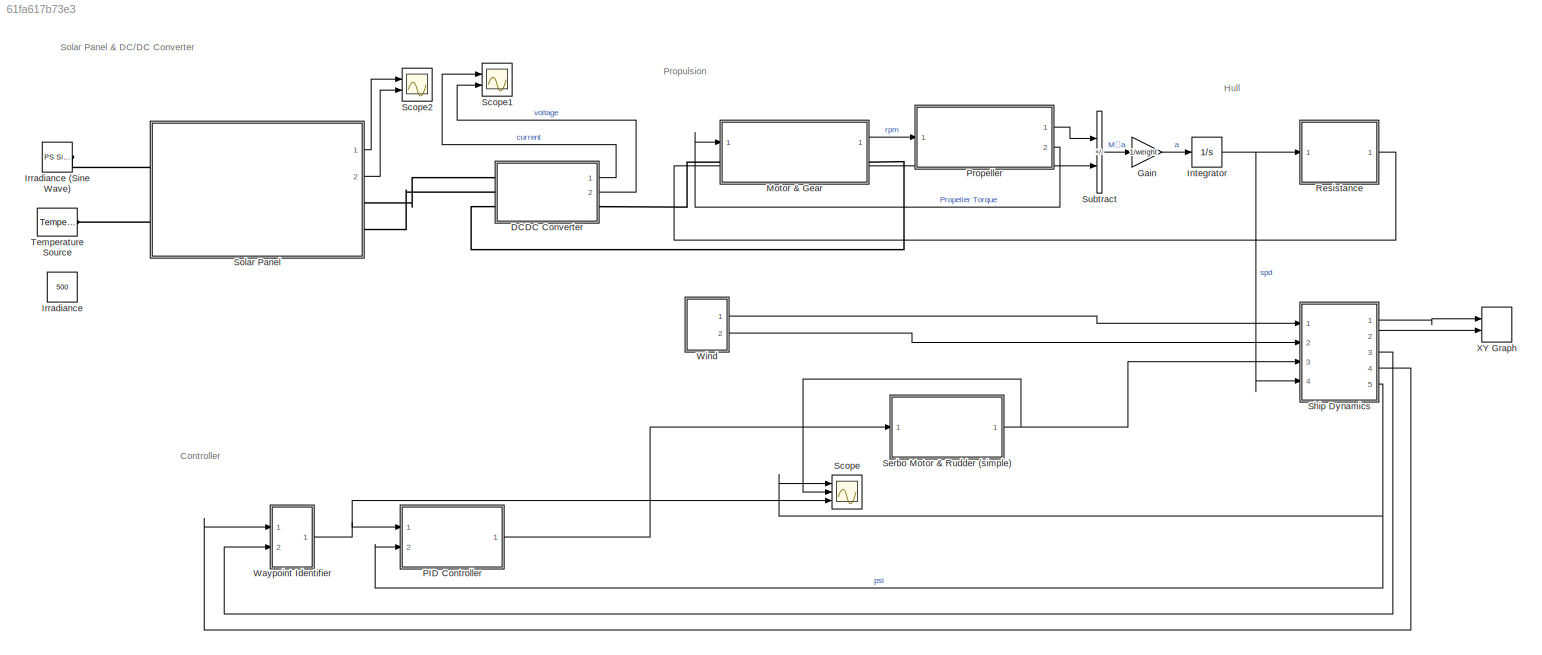
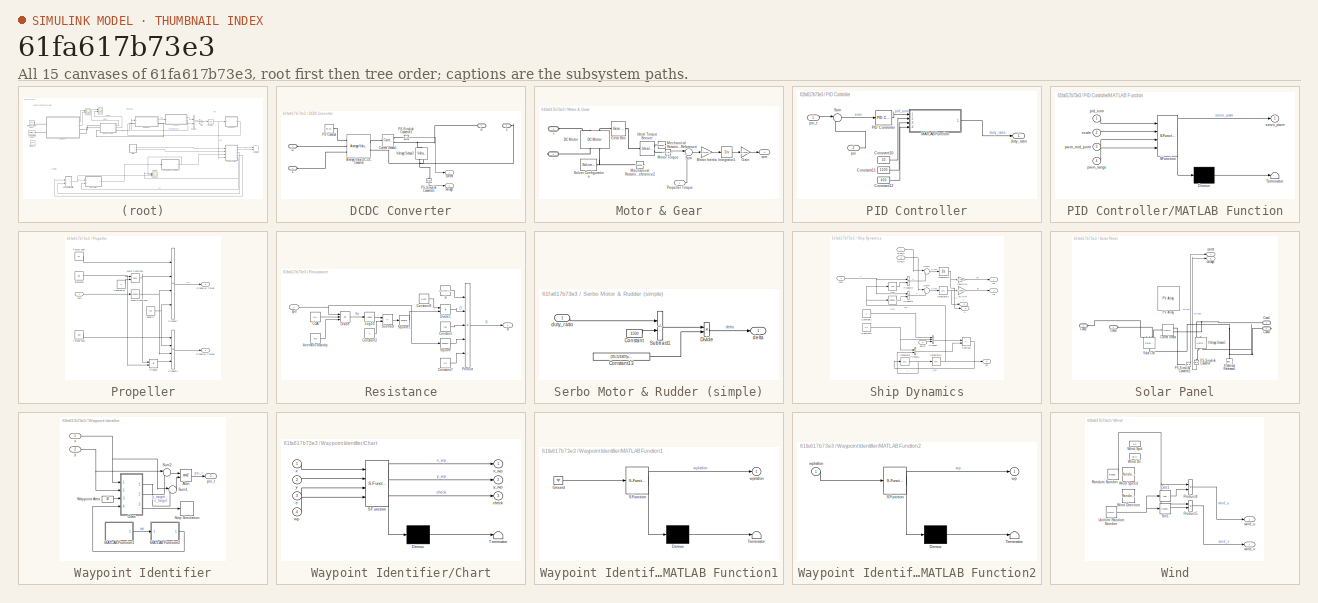
[diagram: thumbnail index - all 15 canvases of the model, root first then tree order]
MODEL slx_61fa617b73e3
KIND model
CONFIG AbsTol = auto
CONFIG EnableMultiTasking = off
CONFIG FixedStep = auto
CONFIG MaxStep = auto
CONFIG MinStep = auto
CONFIG RelTol = 1e-3
CONFIG SampleTimeConstraint = Unconstrained
CONFIG SolverName = VariableStepAuto
CONFIG StartTime = 0.0
CONFIG StopTime = 100
WORKSPACE source: mxarray member
WORKSPACE B = 0.67
WORKSPACE Cf = 0.00361699607356
WORKSPACE Dp = 0.2
WORKSPACE J = 1.6925
WORKSPACE K = 10
WORKSPACE KQ = 0.0168
WORKSPACE KT = 0.0514
WORKSPACE LOA = 1.8
WORKSPACE Re = 3577817.53131
WORKSPACE T = 1
WORKSPACE U = 5
WORKSPACE V_abs = 2
WORKSPACE d = 0.2
WORKSPACE mu = 1.188e-06
WORKSPACE psi_t = 0.174532925199
WORKSPACE rho = 1025
WORKSPACE weight = 8.036
WORKSPACE x_wp = 100
WORKSPACE y_wp = 100
BLOCK [SubSystem] DCDC Converter
  Ports = [0, 2, 0, 0, 0, 3, 1]
  RequestExecContextInheritance = off
BLOCK [PMIOPort] DCDC Converter/1+
  Side = Left
BLOCK [PMIOPort] DCDC Converter/1-
  Port = 2
  Side = Left
BLOCK [PMIOPort] DCDC Converter/2+
  Port = 4
  Side = Right
BLOCK [PMIOPort] DCDC Converter/2-
  Port = 3
  Side = Left
BLOCK [Reference] DCDC Converter/Average-Value DC-DC Converter  REF=ee_lib/Semiconductors &
Converters/Converters/Average-Value DC-DC
Converter
  Ports = [0, 0, 0, 0, 0, 3, 2]
  SourceBlock = ee_lib/Semiconductors &\nConverters/Converters/Average-Value DC-DC\nConverter
  SourceProductBaseCode = PS
  SourceType = Average-Value DC-DC\nConverter
BLOCK [Reference] DCDC Converter/Current Sensor1  REF=fl_lib/Electrical/Electrical Sensors/Current Sensor
  Ports = [0, 0, 0, 0, 0, 1, 2]
  SourceBlock = fl_lib/Electrical/Electrical Sensors/Current Sensor
  SourceProductBaseCode = PW,SS,VE
  SourceType = Current Sensor
BLOCK [Reference] DCDC Converter/PS Constant  REF=fl_lib/Physical Signals/Sources/PS Constant
  Ports = [0, 0, 0, 0, 0, 0, 1]
  SourceBlock = fl_lib/Physical Signals/Sources/PS Constant
  SourceProductBaseCode = PW,SS,VE
  SourceType = PS Constant
BLOCK [Reference] DCDC Converter/PS-Simulink Converter1  REF=nesl_utility/PS-Simulink
Converter
  NameLocation = left
  Ports = [0, 1, 0, 0, 0, 1]
  SourceBlock = nesl_utility/PS-Simulink\nConverter
  SourceProductBaseCode = SS,PW,VE
  SourceType = PS-Simulink\nConverter
BLOCK [Reference] DCDC Converter/PS-Simulink Converter3  REF=nesl_utility/PS-Simulink
Converter
  Ports = [0, 1, 0, 0, 0, 1]
  SourceBlock = nesl_utility/PS-Simulink\nConverter
  SourceProductBaseCode = SS,PW,VE
  SourceType = PS-Simulink\nConverter
BLOCK [Reference] DCDC Converter/Voltage Sensor2  REF=fl_lib/Electrical/Electrical Sensors/Voltage Sensor
  NameLocation = right
  Ports = [0, 0, 0, 0, 0, 1, 2]
  SourceBlock = fl_lib/Electrical/Electrical Sensors/Voltage Sensor
  SourceProductBaseCode = PW,SS,VE
  SourceType = Voltage Sensor
BLOCK [Outport] DCDC Converter/current
BLOCK [Outport] DCDC Converter/voltage
  Port = 2
BLOCK [Gain] Gain
  Gain = 1/weight
BLOCK [Integrator] Integrator
  Ports = [1, 1]
BLOCK [Constant] Irradiance
  Commented = on
  Value = 500
BLOCK [Reference] Irradiance (Sine Wave)  REF=fl_lib/Physical Signals/Sources/PS Sine Wave
  Ports = [0, 0, 0, 0, 0, 0, 1]
  SourceBlock = fl_lib/Physical Signals/Sources/PS Sine Wave
  SourceProductBaseCode = PW,SS,VE
  SourceType = PS Sine Wave
BLOCK [SubSystem] Motor & Gear
  Ports = [1, 1, 0, 0, 0, 1, 1]
  RequestExecContextInheritance = off
BLOCK [PMIOPort] Motor & Gear/+
  Side = Left
BLOCK [PMIOPort] Motor & Gear/-
  Port = 2
  Side = Right
BLOCK [Reference] Motor & Gear/DC Motor  REF=ee_lib/Electromechanical/Brushed Motors/DC Motor
  NameLocation = right
  Ports = [0, 0, 0, 0, 0, 2, 2]
  SourceBlock = ee_lib/Electromechanical/Brushed Motors/DC Motor
  SourceProductBaseCode = PS
  SourceType = DC Motor
BLOCK [Gain] Motor & Gear/Gain
  Gain = 1/(2*pi)
BLOCK [Reference] Motor & Gear/Gear Box  REF=fl_lib/Mechanical/Mechanisms/Gear Box
  Ports = [0, 0, 0, 0, 0, 1, 1]
  SourceBlock = fl_lib/Mechanical/Mechanisms/Gear Box
  SourceProductBaseCode = PW,SS,VE
  SourceType = Gear Box
BLOCK [Reference] Motor & Gear/Ideal Torque Sensor  REF=fl_lib/Mechanical/Mechanical Sensors/Ideal Torque Sensor
  Ports = [0, 0, 0, 0, 0, 1, 2]
  SourceBlock = fl_lib/Mechanical/Mechanical Sensors/Ideal Torque Sensor
  SourceProductBaseCode = PW,SS,VE
  SourceType = Ideal Torque Sensor
BLOCK [Integrator] Motor & Gear/Integrator1
  Ports = [1, 1]
BLOCK [Reference] Motor & Gear/Mechanical Rotational Reference  REF=fl_lib/Mechanical/Rotational Elements/Mechanical
Rotational Reference
  NameLocation = top
  Ports = [0, 0, 0, 0, 0, 1]
  SourceBlock = fl_lib/Mechanical/Rotational Elements/Mechanical\nRotational Reference
  SourceProductBaseCode = PW,SS,VE
  SourceType = Mechanical\nRotational Reference
BLOCK [Reference] Motor & Gear/Mechanical Rotational Reference2  REF=fl_lib/Mechanical/Rotational Elements/Mechanical
Rotational Reference
  NameLocation = top
  Ports = [0, 0, 0, 0, 0, 1]
  SourceBlock = fl_lib/Mechanical/Rotational Elements/Mechanical\nRotational Reference
  SourceProductBaseCode = PW,SS,VE
  SourceType = Mechanical\nRotational Reference
BLOCK [Gain] Motor & Gear/Motor Inertia
  Gain = 1/(0.00000474*3*(13)^2)
BLOCK [Reference] Motor & Gear/Motor Torque  REF=nesl_utility/PS-Simulink
Converter
  Ports = [0, 1, 0, 0, 0, 1]
  SourceBlock = nesl_utility/PS-Simulink\nConverter
  SourceProductBaseCode = SS,PW,VE
  SourceType = PS-Simulink\nConverter
BLOCK [Inport] Motor & Gear/Propeller Torque
BLOCK [Reference] Motor & Gear/Solver Configuration  REF=nesl_utility/Solver
Configuration
  Ports = [0, 0, 0, 0, 0, 0, 1]
  SourceBlock = nesl_utility/Solver\nConfiguration
  SourceProductBaseCode = SS,PW,VE
  SourceType = Solver\nConfiguration
BLOCK [Sum] Motor & Gear/Sum
  Inputs = |+-
  Ports = [2, 1]
BLOCK [Outport] Motor & Gear/rpm
BLOCK [SubSystem] PID Controller
  Ports = [2, 1]
  RequestExecContextInheritance = off
BLOCK [Constant] PID Controller/Constant10
  Value = 33
BLOCK [Constant] PID Controller/Constant11
  Value = 1500
BLOCK [Constant] PID Controller/Constant12
  Value = 400
BLOCK [SubSystem] PID Controller/MATLAB Function
  ErrorFcn = Stateflow.Translate.translate
  PermitHierarchicalResolution = ExplicitOnly
  Ports = [4, 1]
  RequestExecContextInheritance = off
  SFBlockType = MATLAB Function
  TreatAsAtomicUnit = on
BLOCK [Demux] PID Controller/MATLAB Function/ Demux 
  Outputs = 1
  Ports = [1, 1]
BLOCK [S-Function] PID Controller/MATLAB Function/ SFunction 
  EnableBusSupport = on
  FunctionName = sf_sfun
  PortCounts = [4 2]
  Ports = [4, 2]
  SFcnIsStateOwnerBlock = off
  SFunctionDeploymentMode = off
  Tag = Stateflow S-Function 2
BLOCK [Terminator] PID Controller/MATLAB Function/ Terminator 
BLOCK [Inport] PID Controller/MATLAB Function/pid_sum
BLOCK [Inport] PID Controller/MATLAB Function/pwm_mid_point
  Port = 3
BLOCK [Inport] PID Controller/MATLAB Function/pwm_range
  Port = 4
BLOCK [Inport] PID Controller/MATLAB Function/scale
  Port = 2
BLOCK [Outport] PID Controller/MATLAB Function/servo_pwm
BLOCK [Reference] PID Controller/PID Controller  REF=slpidlib/PID Controller
  Ports = [1, 1]
  SourceBlock = slpidlib/PID Controller
  SourceProductBaseCode = SL
  SourceType = PID 1dof
BLOCK [Sum] PID Controller/Sum
  Inputs = |+-
  Ports = [2, 1]
BLOCK [Outport] PID Controller/duty_ratio
BLOCK [Inport] PID Controller/psi
  NameLocation = left
  Port = 2
BLOCK [Inport] PID Controller/psi_t
BLOCK [SubSystem] Propeller
  Ports = [1, 2]
  RequestExecContextInheritance = off
BLOCK [Constant] Propeller/Constant10
  Value = 4
BLOCK [Math] Propeller/Math Function1
  Operator = pow
  Ports = [2, 1]
BLOCK [Math] Propeller/Math Function2
  Operator = square
  Ports = [1, 1]
BLOCK [Product] Propeller/Product
  Ports = [2, 1]
BLOCK [Product] Propeller/Product1
  Inputs = 4
  Ports = [4, 1]
BLOCK [Product] Propeller/Product7
  Inputs = 4
  Ports = [4, 1]
BLOCK [Outport] Propeller/Propeller Thrust
BLOCK [Outport] Propeller/Propeller Torque
  Port = 2
BLOCK [Constant] Propeller/Thrust coef.
  Value = KT
BLOCK [Constant] Propeller/Torque coef.
  Value = KQ
BLOCK [Constant] Propeller/density
  Value = rho
BLOCK [Constant] Propeller/diameter
  Value = Dp
BLOCK [Inport] Propeller/rpm
BLOCK [SubSystem] Resistance
  Ports = [1, 1]
  RequestExecContextInheritance = off
BLOCK [Constant] Resistance/Constant
  Value = rho
BLOCK [Constant] Resistance/Constant2
  Value = 2
BLOCK [Constant] Resistance/Constant7
  Value = 0.5
BLOCK [Constant] Resistance/Constant8
  Value = 0.075
BLOCK [Product] Resistance/Divide
  Inputs = **/
  Ports = [3, 1]
BLOCK [Product] Resistance/Divide1
  Inputs = */
  Ports = [2, 1]
BLOCK [Constant] Resistance/LOA
  Value = LOA
BLOCK [Math] Resistance/Log10
  Operator = log10
  Ports = [1, 1]
BLOCK [Product] Resistance/Product
  Inputs = 5
  Ports = [5, 1]
BLOCK [Outport] Resistance/R
BLOCK [Constant] Resistance/S
  Value = 0.5*4*pi*((LOA*B)^1.6+(B*d)^1.6+(d*LOA)^1.6)^(1/1.6)
BLOCK [Math] Resistance/Square
  Operator = square
  Ports = [1, 1]
BLOCK [Math] Resistance/Square1
  Operator = square
  Ports = [1, 1]
BLOCK [Sum] Resistance/Subtract
  IconShape = rectangular
  Inputs = +-
  Ports = [2, 1]
BLOCK [Constant] Resistance/kinematic viscosity
  Value = mu
BLOCK [Inport] Resistance/spd
BLOCK [Scope] Scope
  Floating = off
  NumInputPorts = 3
  Ports = [3]
  ScopeSpecificationString = Simulink.scopes.TimeScopeBlockCfg('CurrentConfiguration', extmgr.ConfigurationSet(extmgr.Configuration('Core','General UI',true),extmgr.Configuration('Core','Source UI',true),extmgr.Configuration('Sources','WiredSimulink',true),extmgr.Configuration('Visuals','Time Domain',true,'SerializedDisplays',{struct('MinYLimReal','-4.10884','MaxYLimReal','5.67255','YLabelReal','','MinYLimMag','0.00000','MaxY...<+1501ch>
BLOCK [Scope] Scope1
  Floating = off
  NumInputPorts = 2
  Ports = [2]
  ScopeSpecificationString = Simulink.scopes.TimeScopeBlockCfg('CurrentConfiguration', extmgr.ConfigurationSet(extmgr.Configuration('Core','General UI',true),extmgr.Configuration('Core','Source UI',true),extmgr.Configuration('Sources','WiredSimulink',true,'DataLoggingVariableName','ScopeData1'),extmgr.Configuration('Visuals','Time Domain',true,'SerializedDisplays',{struct('MinYLimReal','-21.55507','MaxYLimReal','193.99561','Y...<+1459ch>
BLOCK [Scope] Scope2
  Floating = off
  NumInputPorts = 2
  Ports = [2]
  ScopeSpecificationString = Simulink.scopes.TimeScopeBlockCfg('CurrentConfiguration', extmgr.ConfigurationSet(extmgr.Configuration('Core','General UI',true),extmgr.Configuration('Core','Source UI',true),extmgr.Configuration('Sources','WiredSimulink',true,'DataLoggingVariableName','ScopeData2'),extmgr.Configuration('Visuals','Time Domain',true,'SerializedDisplays',{struct('MinYLimReal','-58.48975','MaxYLimReal','379.71812','Y...<+1505ch>
BLOCK [SubSystem] Serbo Motor & Rudder (simple)
  Ports = [1, 1]
  RequestExecContextInheritance = off
BLOCK [Constant] Serbo Motor & Rudder (simple)/Constant
  Value = 1500
BLOCK [Constant] Serbo Motor & Rudder (simple)/Constant13
  Value = (35.5/180*pi)/400
BLOCK [Product] Serbo Motor & Rudder (simple)/Divide
  Inputs = **
  Ports = [2, 1]
BLOCK [Sum] Serbo Motor & Rudder (simple)/Subtract1
  IconShape = rectangular
  Inputs = +-
  Ports = [2, 1]
BLOCK [Outport] Serbo Motor & Rudder (simple)/delta
BLOCK [Inport] Serbo Motor & Rudder (simple)/duty_ratio
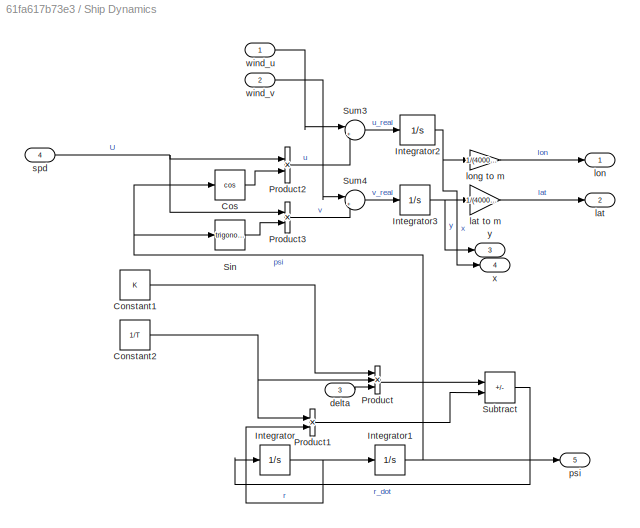
BLOCK [SubSystem] Ship Dynamics
  Ports = [4, 5]
  RequestExecContextInheritance = off
BLOCK [Constant] Ship Dynamics/Constant1
  Value = K
BLOCK [Constant] Ship Dynamics/Constant2
  Value = 1/T
BLOCK [Trigonometry] Ship Dynamics/Cos
  Operator = cos
  Ports = [1, 1]
BLOCK [Integrator] Ship Dynamics/Integrator
  Ports = [1, 1]
BLOCK [Integrator] Ship Dynamics/Integrator1
  Ports = [1, 1]
BLOCK [Integrator] Ship Dynamics/Integrator2
  InitialCondition = 139.18811*40000000*cos(35.612/180*pi)/360
  Ports = [1, 1]
BLOCK [Integrator] Ship Dynamics/Integrator3
  InitialCondition = 35.61204*40000000/360
  Ports = [1, 1]
BLOCK [Product] Ship Dynamics/Product
  Inputs = 3
  Ports = [3, 1]
BLOCK [Product] Ship Dynamics/Product1
  Ports = [2, 1]
BLOCK [Product] Ship Dynamics/Product2
  Ports = [2, 1]
BLOCK [Product] Ship Dynamics/Product3
  Ports = [2, 1]
BLOCK [Trigonometry] Ship Dynamics/Sin
  Ports = [1, 1]
BLOCK [Sum] Ship Dynamics/Subtract
  IconShape = rectangular
  Inputs = +-
  Ports = [2, 1]
BLOCK [Sum] Ship Dynamics/Sum3
  Inputs = |++
  Ports = [2, 1]
BLOCK [Sum] Ship Dynamics/Sum4
  Inputs = |++
  Ports = [2, 1]
BLOCK [Inport] Ship Dynamics/delta
  Port = 3
BLOCK [Outport] Ship Dynamics/lat
  Port = 2
BLOCK [Gain] Ship Dynamics/lat to m
  Gain = 1/(40000000/360)
BLOCK [Outport] Ship Dynamics/lon
BLOCK [Gain] Ship Dynamics/long to m
  Gain = 1/(40000000*cos(35.612/180*pi)/360)
BLOCK [Outport] Ship Dynamics/psi
  Port = 5
BLOCK [Inport] Ship Dynamics/spd
  Port = 4
BLOCK [Inport] Ship Dynamics/wind_u
BLOCK [Inport] Ship Dynamics/wind_v
  Port = 2
BLOCK [Outport] Ship Dynamics/x
  Port = 4
BLOCK [Outport] Ship Dynamics/y
  Port = 3
BLOCK [SubSystem] Solar Panel
  Ports = [0, 2, 0, 0, 0, 2, 2]
  RequestExecContextInheritance = off
BLOCK [PMIOPort] Solar Panel/Conn1
  Side = Right
BLOCK [PMIOPort] Solar Panel/Conn2
  Port = 2
  Side = Left
BLOCK [PMIOPort] Solar Panel/Conn3
  Port = 3
  Side = Left
BLOCK [PMIOPort] Solar Panel/Conn4
  Port = 4
  Side = Right
BLOCK [Reference] Solar Panel/Current Sensor  REF=fl_lib/Electrical/Electrical Sensors/Current Sensor
  Ports = [0, 0, 0, 0, 0, 1, 2]
  SourceBlock = fl_lib/Electrical/Electrical Sensors/Current Sensor
  SourceProductBaseCode = PW,SS,VE
  SourceType = Current Sensor
BLOCK [Reference] Solar Panel/Electrical Reference1  REF=fl_lib/Electrical/Electrical Elements/Electrical Reference
  NameLocation = right
  Ports = [0, 0, 0, 0, 0, 1]
  SourceBlock = fl_lib/Electrical/Electrical Elements/Electrical Reference
  SourceProductBaseCode = PW,SS,VE
  SourceType = Electrical Reference
BLOCK [Reference] Solar Panel/PS-Simulink Converter  REF=nesl_utility/PS-Simulink
Converter
  NameLocation = left
  Ports = [0, 1, 0, 0, 0, 1]
  SourceBlock = nesl_utility/PS-Simulink\nConverter
  SourceProductBaseCode = SS,PW,VE
  SourceType = PS-Simulink\nConverter
BLOCK [Reference] Solar Panel/PS-Simulink Converter2  REF=nesl_utility/PS-Simulink
Converter
  Ports = [0, 1, 0, 0, 0, 1]
  SourceBlock = nesl_utility/PS-Simulink\nConverter
  SourceProductBaseCode = SS,PW,VE
  SourceType = PS-Simulink\nConverter
BLOCK [Reference] Solar Panel/PV Array  REF=spsPVArrayLib/PV Array
  Commented = on
  Ports = [2, 1, 0, 0, 0, 0, 2]
  SourceBlock = spsPVArrayLib/PV Array
  SourceProductBaseCode = PS
  SourceType = PV array
BLOCK [Reference] Solar Panel/Solar Cell  REF=ee_lib/Sources/Solar Cell
  NameLocation = right
  Ports = [0, 0, 0, 0, 0, 3, 1]
  SourceBlock = ee_lib/Sources/Solar Cell
  SourceProductBaseCode = PS
  SourceType = Solar Cell
BLOCK [Reference] Solar Panel/Voltage Sensor1  REF=fl_lib/Electrical/Electrical Sensors/Voltage Sensor
  NameLocation = right
  Ports = [0, 0, 0, 0, 0, 1, 2]
  SourceBlock = fl_lib/Electrical/Electrical Sensors/Voltage Sensor
  SourceProductBaseCode = PW,SS,VE
  SourceType = Voltage Sensor
BLOCK [Outport] Solar Panel/current
BLOCK [Outport] Solar Panel/voltage
  Port = 2
BLOCK [Sum] Subtract
  IconShape = rectangular
  Inputs = +-
  Ports = [2, 1]
BLOCK [Reference] Temperature Source  REF=fl_lib/Thermal/Thermal Sources/Temperature Source
  NameLocation = top
  Ports = [0, 0, 0, 0, 0, 1]
  SourceBlock = fl_lib/Thermal/Thermal Sources/Temperature Source
  SourceProductBaseCode = PW,SS,VE
  SourceType = Temperature Source
BLOCK [SubSystem] Waypoint Identifier
  Ports = [2, 1]
  RequestExecContextInheritance = off
BLOCK [Trigonometry] Waypoint Identifier/Atan
  Operator = atan2
  Ports = [2, 1]
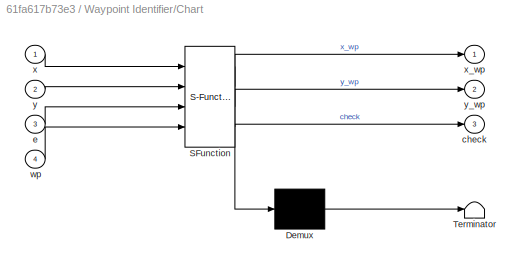
BLOCK [SubSystem] Waypoint Identifier/Chart
  ErrorFcn = Stateflow.Translate.translate
  PermitHierarchicalResolution = ExplicitOnly
  Ports = [4, 3]
  RequestExecContextInheritance = off
  SFBlockType = Chart
  TreatAsAtomicUnit = on
BLOCK [Demux] Waypoint Identifier/Chart/ Demux 
  Outputs = 1
  Ports = [1, 1]
BLOCK [S-Function] Waypoint Identifier/Chart/ SFunction 
  EnableBusSupport = on
  FunctionName = sf_sfun
  PortCounts = [4 4]
  Ports = [4, 4]
  SFcnIsStateOwnerBlock = off
  SFunctionDeploymentMode = off
  Tag = Stateflow S-Function 3
BLOCK [Terminator] Waypoint Identifier/Chart/ Terminator 
BLOCK [Outport] Waypoint Identifier/Chart/check
  Port = 3
BLOCK [Inport] Waypoint Identifier/Chart/e
  Port = 3
BLOCK [Inport] Waypoint Identifier/Chart/wp
  Port = 4
BLOCK [Inport] Waypoint Identifier/Chart/x
BLOCK [Outport] Waypoint Identifier/Chart/x_wp
BLOCK [Inport] Waypoint Identifier/Chart/y
  Port = 2
BLOCK [Outport] Waypoint Identifier/Chart/y_wp
  Port = 2
BLOCK [SubSystem] Waypoint Identifier/MATLAB Function1
  ErrorFcn = Stateflow.Translate.translate
  PermitHierarchicalResolution = ExplicitOnly
  Ports = [0, 1]
  RequestExecContextInheritance = off
  SFBlockType = MATLAB Function
  TreatAsAtomicUnit = on
BLOCK [Demux] Waypoint Identifier/MATLAB Function1/ Demux 
  Outputs = 1
  Ports = [1, 1]
BLOCK [Ground] Waypoint Identifier/MATLAB Function1/ Ground 
BLOCK [S-Function] Waypoint Identifier/MATLAB Function1/ SFunction 
  EnableBusSupport = on
  FunctionName = sf_sfun
  PortCounts = [1 2]
  Ports = [1, 2]
  SFcnIsStateOwnerBlock = off
  SFunctionDeploymentMode = off
  Tag = Stateflow S-Function 1
BLOCK [Terminator] Waypoint Identifier/MATLAB Function1/ Terminator 
BLOCK [Outport] Waypoint Identifier/MATLAB Function1/wplatlon
BLOCK [SubSystem] Waypoint Identifier/MATLAB Function2
  ErrorFcn = Stateflow.Translate.translate
  PermitHierarchicalResolution = ExplicitOnly
  Ports = [1, 1]
  RequestExecContextInheritance = off
  SFBlockType = MATLAB Function
  TreatAsAtomicUnit = on
BLOCK [Demux] Waypoint Identifier/MATLAB Function2/ Demux 
  Outputs = 1
  Ports = [1, 1]
BLOCK [S-Function] Waypoint Identifier/MATLAB Function2/ SFunction 
  EnableBusSupport = on
  FunctionName = sf_sfun
  PortCounts = [1 2]
  Ports = [1, 2]
  SFcnIsStateOwnerBlock = off
  SFunctionDeploymentMode = off
  Tag = Stateflow S-Function 4
BLOCK [Terminator] Waypoint Identifier/MATLAB Function2/ Terminator 
BLOCK [Outport] Waypoint Identifier/MATLAB Function2/wp
BLOCK [Inport] Waypoint Identifier/MATLAB Function2/wplatlon
BLOCK [Stop] Waypoint Identifier/Stop Simulation
BLOCK [Sum] Waypoint Identifier/Sum1
  Inputs = |-+
  Ports = [2, 1]
BLOCK [Sum] Waypoint Identifier/Sum2
  Inputs = |-+
  Ports = [2, 1]
BLOCK [Constant] Waypoint Identifier/Waypoint Area
  Value = 10
BLOCK [Outport] Waypoint Identifier/psi_t
BLOCK [Inport] Waypoint Identifier/x
BLOCK [Inport] Waypoint Identifier/y
  Port = 2
BLOCK [SubSystem] Wind
  Ports = [0, 2]
  RequestExecContextInheritance = off
BLOCK [Trigonometry] Wind/Cos1
  Operator = cos
  Ports = [1, 1]
BLOCK [Product] Wind/Product4
  Ports = [2, 1]
BLOCK [Product] Wind/Product5
  Ports = [2, 1]
BLOCK [RandomNumber] Wind/Random Number
  SampleTime = 0.1
BLOCK [Trigonometry] Wind/Sin1
  Ports = [1, 1]
BLOCK [UniformRandomNumber] Wind/Uniform Random Number
  Maximum = 2*pi
  Minimum = 0
  SampleTime = 0.1
BLOCK [Constant] Wind/Wind Dir
  Commented = on
  Value = pi/2
BLOCK [Reference] Wind/Wind Direction  REF=dspsrcs4/Random
Source
  Commented = on
  Ports = [0, 1]
  SourceBlock = dspsrcs4/Random\nSource
  SourceProductBaseCode = DS
  SourceType = Random Source
  UserDataPersistent = on
BLOCK [Constant] Wind/Wind Spd
  Commented = on
  Value = 0.2
BLOCK [Reference] Wind/Wind Speed  REF=dspsrcs4/Random
Source
  Commented = on
  Ports = [0, 1]
  SourceBlock = dspsrcs4/Random\nSource
  SourceProductBaseCode = DS
  SourceType = Random Source
  UserDataPersistent = on
BLOCK [Outport] Wind/wind_u
BLOCK [Outport] Wind/wind_v
  Port = 2
BLOCK [Record] XY Graph
  CompatibilityTag = XY
  FileSettingsInternal = {"entries":[{"content":{"excelSettings":{"content":{},"type":"Streamout.ExcelSettings"}},"type":"Streamout.FileSettingStorage","uuid":"fc5eb300-97e0-4115-87c7-5fdc50d21362"}],"packageUris":["http://schema.mathworks.com/mf0/streamout_blocks/R2020a"],"version":"1.0"}
  Layout = [1 1]
  Ports = [2]
  SignalsInternal = {"entries":[{"content":{"signals":[{"content":{"blockPath":["solarboat_solar/XY Graph"],"channel":[],"dimensions":[1],"domain":"solarboat_solar/XY Graph","lineColor":"#77ac30","plots":[],"port":1,"sid":[""],"signalID":312,"signalName":"Ship Dynamics:1"},"type":"RecordBlkView.Signal","uuid":"acc7c85f-4951-4bf2-b97d-efe73aeb3011"},{"content":{"blockPath":["solarboat_solar/XY Graph"],"channel":[],"di...<+403ch>
  VisualizationBindings = {"xyplotplugin":{"info":[{"series":[],"subplotID":1}]}}
  st = -1
ANNOTATION (root): Controller
ANNOTATION (root): Hull
ANNOTATION (root): Propulsion
ANNOTATION (root): Solar Panel & DC/DC Converter
LINE DCDC Converter/PS-Simulink Converter1:1 -> DCDC Converter/voltage:1
LINE DCDC Converter/PS-Simulink Converter3:1 -> DCDC Converter/current:1
LINE DCDC Converter:1 -> Scope1:1
LINE DCDC Converter:2 -> Scope1:2
LINE Gain:1 -> Integrator:1
NET Integrator:1 -> Resistance:1, Ship Dynamics:4
LINE Motor & Gear/Gain:1 -> Motor & Gear/rpm:1
LINE Motor & Gear/Integrator1:1 -> Motor & Gear/Gain:1
LINE Motor & Gear/Motor Inertia:1 -> Motor & Gear/Integrator1:1
LINE Motor & Gear/Motor Torque:1 -> Motor & Gear/Sum:1
LINE Motor & Gear/Propeller Torque:1 -> Motor & Gear/Sum:2
LINE Motor & Gear/Sum:1 -> Motor & Gear/Motor Inertia:1
LINE Motor & Gear:1 -> Propeller:1
LINE PID Controller/Constant10:1 -> PID Controller/MATLAB Function:2
LINE PID Controller/Constant11:1 -> PID Controller/MATLAB Function:3
LINE PID Controller/Constant12:1 -> PID Controller/MATLAB Function:4
LINE PID Controller/MATLAB Function:1 -> PID Controller/duty_ratio:1
LINE PID Controller/PID Controller:1 -> PID Controller/MATLAB Function:1
LINE PID Controller/Sum:1 -> PID Controller/PID Controller:1
LINE PID Controller/psi:1 -> PID Controller/Sum:2
LINE PID Controller/psi_t:1 -> PID Controller/Sum:1
LINE PID Controller:1 -> Serbo Motor & Rudder (simple):1
LINE Propeller/Constant10:1 -> Propeller/Math Function1:2
NET Propeller/Math Function1:1 -> Propeller/Product7:2, Propeller/Product:1
NET Propeller/Math Function2:1 -> Propeller/Product1:3, Propeller/Product7:3
LINE Propeller/Product1:1 -> Propeller/Propeller Torque:1
LINE Propeller/Product7:1 -> Propeller/Propeller Thrust:1
LINE Propeller/Product:1 -> Propeller/Product1:4
LINE Propeller/Thrust coef.:1 -> Propeller/Product7:1
LINE Propeller/Torque coef.:1 -> Propeller/Product1:1
NET Propeller/density:1 -> Propeller/Product1:2, Propeller/Product7:4
NET Propeller/diameter:1 -> Propeller/Math Function1:1, Propeller/Product:2
LINE Propeller/rpm:1 -> Propeller/Math Function2:1
LINE Propeller:1 -> Subtract:1
LINE Propeller:2 -> Motor & Gear:1
LINE Resistance/Constant2:1 -> Resistance/Subtract:2
LINE Resistance/Constant7:1 -> Resistance/Product:5
LINE Resistance/Constant8:1 -> Resistance/Divide1:1
LINE Resistance/Constant:1 -> Resistance/Product:3
LINE Resistance/Divide1:1 -> Resistance/Product:2
LINE Resistance/Divide:1 -> Resistance/Log10:1
LINE Resistance/LOA:1 -> Resistance/Divide:2
LINE Resistance/Log10:1 -> Resistance/Subtract:1
LINE Resistance/Product:1 -> Resistance/R:1
LINE Resistance/S:1 -> Resistance/Product:1
LINE Resistance/Square1:1 -> Resistance/Divide1:2
LINE Resistance/Square:1 -> Resistance/Product:4
LINE Resistance/Subtract:1 -> Resistance/Square1:1
LINE Resistance/kinematic viscosity:1 -> Resistance/Divide:3
NET Resistance/spd:1 -> Resistance/Divide:1, Resistance/Square:1
LINE Resistance:1 -> Subtract:2
LINE Serbo Motor & Rudder (simple)/Constant13:1 -> Serbo Motor & Rudder (simple)/Divide:2
LINE Serbo Motor & Rudder (simple)/Constant:1 -> Serbo Motor & Rudder (simple)/Subtract1:2
LINE Serbo Motor & Rudder (simple)/Divide:1 -> Serbo Motor & Rudder (simple)/delta:1
LINE Serbo Motor & Rudder (simple)/Subtract1:1 -> Serbo Motor & Rudder (simple)/Divide:1
LINE Serbo Motor & Rudder (simple)/duty_ratio:1 -> Serbo Motor & Rudder (simple)/Subtract1:1
NET Serbo Motor & Rudder (simple):1 -> Scope:2, Ship Dynamics:3
LINE Ship Dynamics/Constant1:1 -> Ship Dynamics/Product:1
NET Ship Dynamics/Constant2:1 -> Ship Dynamics/Product1:1, Ship Dynamics/Product:2
LINE Ship Dynamics/Cos:1 -> Ship Dynamics/Product2:2
NET Ship Dynamics/Integrator1:1 -> Ship Dynamics/Cos:1, Ship Dynamics/Sin:1, Ship Dynamics/psi:1
NET Ship Dynamics/Integrator2:1 -> Ship Dynamics/long to m:1, Ship Dynamics/x:1
NET Ship Dynamics/Integrator3:1 -> Ship Dynamics/lat to m:1, Ship Dynamics/y:1
NET Ship Dynamics/Integrator:1 -> Ship Dynamics/Integrator1:1, Ship Dynamics/Product1:2
LINE Ship Dynamics/Product1:1 -> Ship Dynamics/Subtract:2
LINE Ship Dynamics/Product2:1 -> Ship Dynamics/Sum3:2
LINE Ship Dynamics/Product3:1 -> Ship Dynamics/Sum4:2
LINE Ship Dynamics/Product:1 -> Ship Dynamics/Subtract:1
LINE Ship Dynamics/Sin:1 -> Ship Dynamics/Product3:2
LINE Ship Dynamics/Subtract:1 -> Ship Dynamics/Integrator:1
LINE Ship Dynamics/Sum3:1 -> Ship Dynamics/Integrator2:1
LINE Ship Dynamics/Sum4:1 -> Ship Dynamics/Integrator3:1
LINE Ship Dynamics/delta:1 -> Ship Dynamics/Product:3
LINE Ship Dynamics/lat to m:1 -> Ship Dynamics/lat:1
LINE Ship Dynamics/long to m:1 -> Ship Dynamics/lon:1
NET Ship Dynamics/spd:1 -> Ship Dynamics/Product2:1, Ship Dynamics/Product3:1
LINE Ship Dynamics/wind_u:1 -> Ship Dynamics/Sum3:1
LINE Ship Dynamics/wind_v:1 -> Ship Dynamics/Sum4:1
LINE Ship Dynamics:1 -> XY Graph:1
LINE Ship Dynamics:2 -> XY Graph:2
LINE Ship Dynamics:3 -> Waypoint Identifier:2
LINE Ship Dynamics:4 -> Waypoint Identifier:1
NET Ship Dynamics:5 -> PID Controller:2, Scope:1
LINE Solar Panel/PS-Simulink Converter2:1 -> Solar Panel/current:1
LINE Solar Panel/PS-Simulink Converter:1 -> Solar Panel/voltage:1
LINE Solar Panel:1 -> Scope2:1
LINE Solar Panel:2 -> Scope2:2
LINE Subtract:1 -> Gain:1
LINE Waypoint Identifier/Atan:1 -> Waypoint Identifier/psi_t:1
LINE Waypoint Identifier/Chart:1 -> Waypoint Identifier/Sum1:2
LINE Waypoint Identifier/Chart:2 -> Waypoint Identifier/Sum2:2
LINE Waypoint Identifier/Chart:3 -> Waypoint Identifier/Stop Simulation:1
LINE Waypoint Identifier/MATLAB Function1:1 -> Waypoint Identifier/MATLAB Function2:1
LINE Waypoint Identifier/MATLAB Function2:1 -> Waypoint Identifier/Chart:4
LINE Waypoint Identifier/Sum1:1 -> Waypoint Identifier/Atan:2
LINE Waypoint Identifier/Sum2:1 -> Waypoint Identifier/Atan:1
LINE Waypoint Identifier/Waypoint Area:1 -> Waypoint Identifier/Chart:3
NET Waypoint Identifier/x:1 -> Waypoint Identifier/Chart:1, Waypoint Identifier/Sum1:1
NET Waypoint Identifier/y:1 -> Waypoint Identifier/Chart:2, Waypoint Identifier/Sum2:1
NET Waypoint Identifier:1 -> PID Controller:1, Scope:3
LINE Wind/Cos1:1 -> Wind/Product4:2
LINE Wind/Product4:1 -> Wind/wind_u:1
LINE Wind/Product5:1 -> Wind/wind_v:1
NET Wind/Random Number:1 -> Wind/Product4:1, Wind/Product5:1
LINE Wind/Sin1:1 -> Wind/Product5:2
NET Wind/Uniform Random Number:1 -> Wind/Cos1:1, Wind/Sin1:1
LINE Wind:1 -> Ship Dynamics:1
LINE Wind:2 -> Ship Dynamics:2
PLINE DCDC Converter/1+:RConn1 -- DCDC Converter/Average-Value DC-DC Converter:LConn2
PLINE DCDC Converter/1-:RConn1 -- DCDC Converter/Average-Value DC-DC Converter:LConn3
PNET net1: DCDC Converter/2+:RConn1 -- DCDC Converter/Current Sensor1:RConn2 -- DCDC Converter/Voltage Sensor2:LConn1
PNET net2: DCDC Converter/2-:RConn1 -- DCDC Converter/Average-Value DC-DC Converter:RConn2 -- DCDC Converter/Voltage Sensor2:RConn2
PLINE DCDC Converter/Average-Value DC-DC Converter:LConn1 -- DCDC Converter/PS Constant:RConn1
PLINE DCDC Converter/Average-Value DC-DC Converter:RConn1 -- DCDC Converter/Current Sensor1:LConn1
PLINE DCDC Converter/Current Sensor1:RConn1 -- DCDC Converter/PS-Simulink Converter3:LConn1
PLINE DCDC Converter/PS-Simulink Converter1:LConn1 -- DCDC Converter/Voltage Sensor2:RConn1
PLINE DCDC Converter:LConn1 -- Solar Panel:RConn1
PLINE DCDC Converter:LConn2 -- Solar Panel:RConn2
PLINE DCDC Converter:LConn3 -- Motor & Gear:RConn1
PLINE DCDC Converter:RConn1 -- Motor & Gear:LConn1
PLINE Irradiance (Sine Wave):RConn1 -- Solar Panel:LConn1
PLINE Motor & Gear/+:RConn1 -- Motor & Gear/DC Motor:LConn1
PLINE Motor & Gear/-:RConn1 -- Motor & Gear/DC Motor:RConn1
PLINE Motor & Gear/DC Motor:LConn2 -- Motor & Gear/Gear Box:LConn1
PNET net3: Motor & Gear/DC Motor:RConn2 -- Motor & Gear/Mechanical Rotational Reference2:LConn1 -- Motor & Gear/Solver Configuration:RConn1
PLINE Motor & Gear/Gear Box:RConn1 -- Motor & Gear/Ideal Torque Sensor:LConn1
PLINE Motor & Gear/Ideal Torque Sensor:RConn1 -- Motor & Gear/Mechanical Rotational Reference:LConn1
PLINE Motor & Gear/Ideal Torque Sensor:RConn2 -- Motor & Gear/Motor Torque:LConn1
PNET net4: Solar Panel/Conn1:RConn1 -- Solar Panel/Current Sensor:RConn2 -- Solar Panel/Voltage Sensor1:LConn1
PLINE Solar Panel/Conn2:RConn1 -- Solar Panel/Solar Cell:LConn1
PLINE Solar Panel/Conn3:RConn1 -- Solar Panel/Solar Cell:LConn3
PNET net5: Solar Panel/Conn4:RConn1 -- Solar Panel/Electrical Reference1:LConn1 -- Solar Panel/Solar Cell:RConn1 -- Solar Panel/Voltage Sensor1:RConn2
PLINE Solar Panel/Current Sensor:LConn1 -- Solar Panel/Solar Cell:LConn2
PLINE Solar Panel/Current Sensor:RConn1 -- Solar Panel/PS-Simulink Converter2:LConn1
PLINE Solar Panel/PS-Simulink Converter:LConn1 -- Solar Panel/Voltage Sensor1:RConn1
PLINE Solar Panel:LConn2 -- Temperature Source:LConn1
note: NET lines group one-source signal fan-out (src -> all destinations, sorted); 1:1 wires keep LINE; PNET lines group multi-terminal physical nets as a canonical sorted terminal list (undirected conserving connections); 2-terminal nets keep the pairwise PLINE form
CHART Waypoint Identifier/MATLAB Function1 states=1 transitions=1
  STATE_LABEL 'eML_blk_kernel()'
  STATE_LABEL "SCRIPT:\nfunction wplatlon = ReadWP()\ncoder.extrinsic('readmatrix');\nwp = zeros(6,2);\nwp = readmatrix('wp_test_210803.txt');\nwplatlon = flip(wp,2)"
CHART PID Controller/MATLAB Function states=1 transitions=1
  STATE_LABEL 'eML_blk_kernel()'
  STATE_LABEL 'SCRIPT:\nfunction servo_pwm = fcn(pid_sum,scale,pwm_mid_point,pwm_range)\ntemp = exp(-pid_sum / scale)\npid_sum_norm = (2 / (1 + temp)) - 1\nservo_pwm = pwm_mid_point + pwm_range * pid_sum_norm\n'
CHART Waypoint Identifier/Chart states=3 transitions=4
  STATE_LABEL 'waypoint1\nentry:\nx_wp = wp(1,1);\ny_wp = wp(1,2);\nn=1\ncheck = 0'
  STATE_LABEL 'waypointn\nentry:\nn=n+1\nif n <= numel(wp)/2\n    x_wp = wp(n,1);\n    y_wp = wp(n,2);\nend'
  STATE_LABEL 'end\nentry:\ncheck = 1'
CHART Waypoint Identifier/MATLAB Function2 states=1 transitions=1
  STATE_LABEL 'eML_blk_kernel()'
  STATE_LABEL 'SCRIPT:\nfunction wp = wp_t(wplatlon)\nwp=zeros(size(wplatlon))\nwp(:,1)=wplatlon(:,1)*40000000*cos(35.612/180*pi)/360\nwp(:,2)=wplatlon(:,2)*40000000/360'
CHART  states=0 transitions=0
CHART  states=0 transitions=0
CHART  states=0 transitions=0
CHART  states=0 transitions=0
